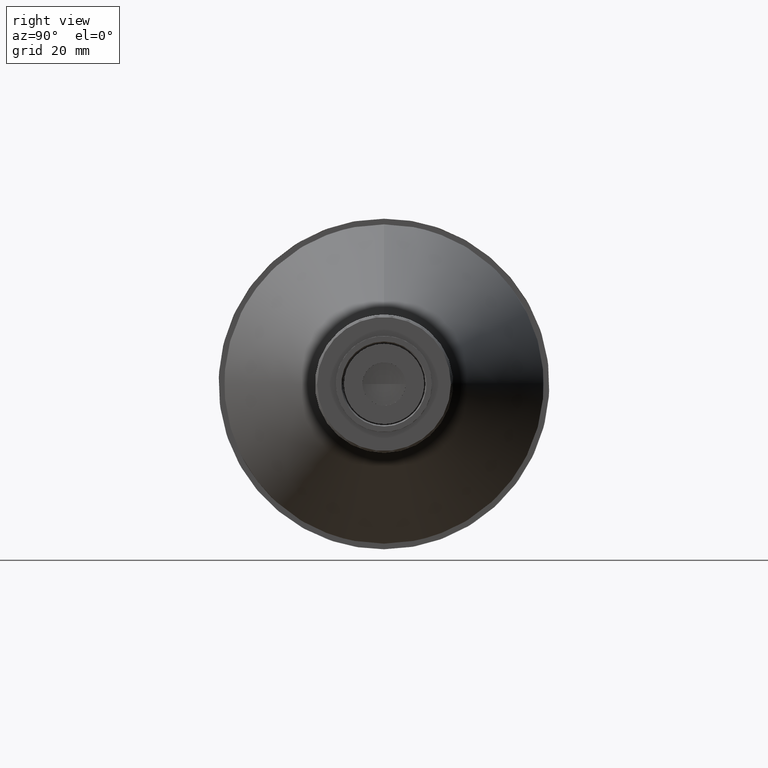
[diagram: clean part render]
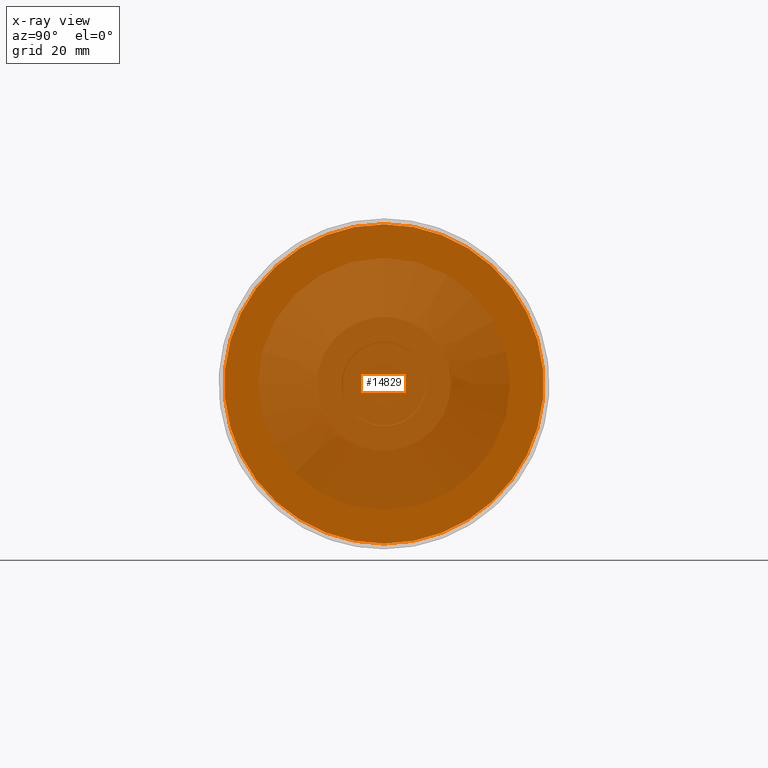
[diagram: x-ray — body ghosted, one internal face saturated and labeled with its STEP entity id]
A machine part, right view, then the same camera in x-ray: the body is ghosted and one INTERNAL B-rep face — a face not visible from any outside direction — is saturated and labeled: STEP entity #14829.
In plain terms, the highlighted planar face has unit normal (1, 0, 0).
Its self-contained STEP definition (entity closure, byte-faithful):
#637 = CARTESIAN_POINT ( 'NONE',  ( 13.43220247988999994, 3.799528696304289511E-45, -164.1114151905999847 ) ) ;
#1530 = AXIS2_PLACEMENT_3D ( 'NONE', #13435, #2306, #2475 ) ;
#2306 = DIRECTION ( 'NONE',  ( 1.000000000000000000, 0.000000000000000000, 0.000000000000000000 ) ) ;
#2475 = DIRECTION ( 'NONE',  ( 0.000000000000000000, 1.000000000000000000, 0.000000000000000000 ) ) ;
#3020 = EDGE_CURVE ( 'NONE', #14331, #4439, #9174, .T. ) ;
#3042 = CIRCLE ( 'NONE', #4774, 42.21292731394399311 ) ;
#3160 = DIRECTION ( 'NONE',  ( 1.000000000000000000, 0.000000000000000000, 0.000000000000000000 ) ) ;
#3565 = PLANE ( 'NONE',  #1530 ) ;
#4127 = CARTESIAN_POINT ( 'NONE',  ( 13.43220247988999994, 5.169592631766139635E-15, -206.3243425045439778 ) ) ;
#4439 = VERTEX_POINT ( 'NONE', #4127 ) ;
#4774 = AXIS2_PLACEMENT_3D ( 'NONE', #5955, #3160, #12753 ) ;
#5955 = CARTESIAN_POINT ( 'NONE',  ( 13.43220247988999994, 3.799528696304289511E-45, -164.1114151905999847 ) ) ;
#7536 = DIRECTION ( 'NONE',  ( 0.000000000000000000, 0.000000000000000000, 1.000000000000000000 ) ) ;
#9174 = CIRCLE ( 'NONE', #13511, 42.21292731394399311 ) ;
#11348 = ORIENTED_EDGE ( 'NONE', *, *, #3020, .F. ) ;
#11954 = EDGE_LOOP ( 'NONE', ( #11348, #12106 ) ) ;
#12106 = ORIENTED_EDGE ( 'NONE', *, *, #17748, .F. ) ;
#12753 = DIRECTION ( 'NONE',  ( 0.000000000000000000, 0.000000000000000000, 1.000000000000000000 ) ) ;
#13435 = CARTESIAN_POINT ( 'NONE',  ( 13.43220247988999994, 3.799528696304289511E-45, -164.1114151905999847 ) ) ;
#13511 = AXIS2_PLACEMENT_3D ( 'NONE', #637, #15782, #7536 ) ;
#14331 = VERTEX_POINT ( 'NONE', #16132 ) ;
#14829 = ADVANCED_FACE ( 'NONE', ( #15888 ), #3565, .F. ) ;
#15782 = DIRECTION ( 'NONE',  ( 1.000000000000000000, 0.000000000000000000, 0.000000000000000000 ) ) ;
#15888 = FACE_OUTER_BOUND ( 'NONE', #11954, .T. ) ;
#16132 = CARTESIAN_POINT ( 'NONE',  ( 13.43220247988999994, 3.799528696304289511E-45, -121.8984878766559916 ) ) ;
#17748 = EDGE_CURVE ( 'NONE', #4439, #14331, #3042, .T. ) ;